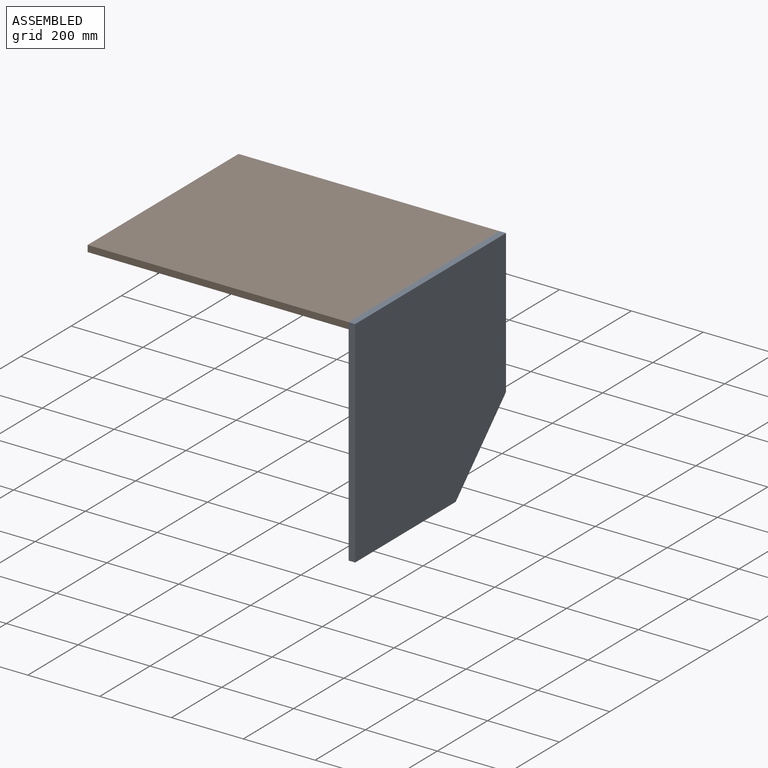
[diagram: assembled view]
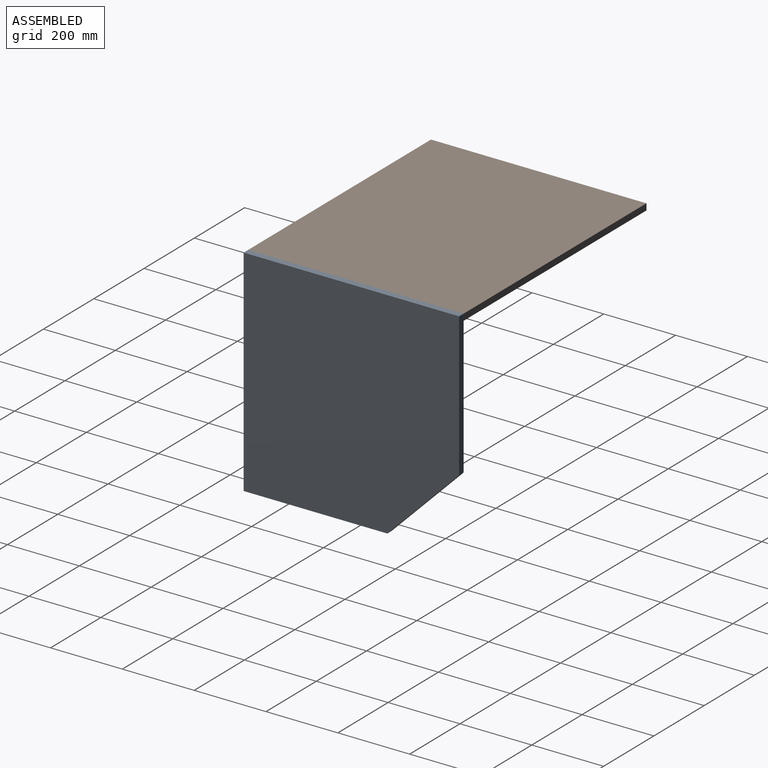
[diagram: assembled view, second angle]
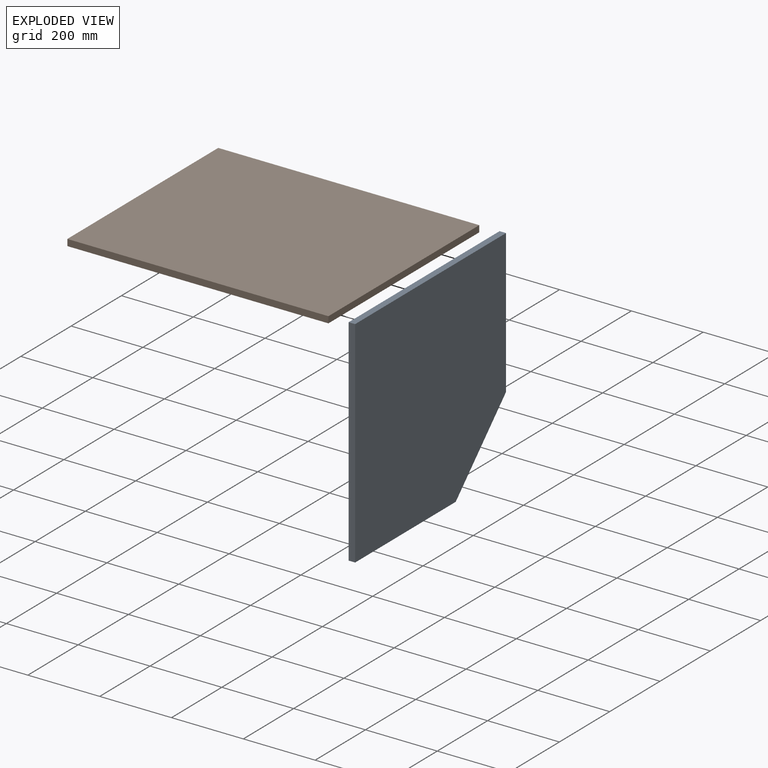
[diagram: exploded view]
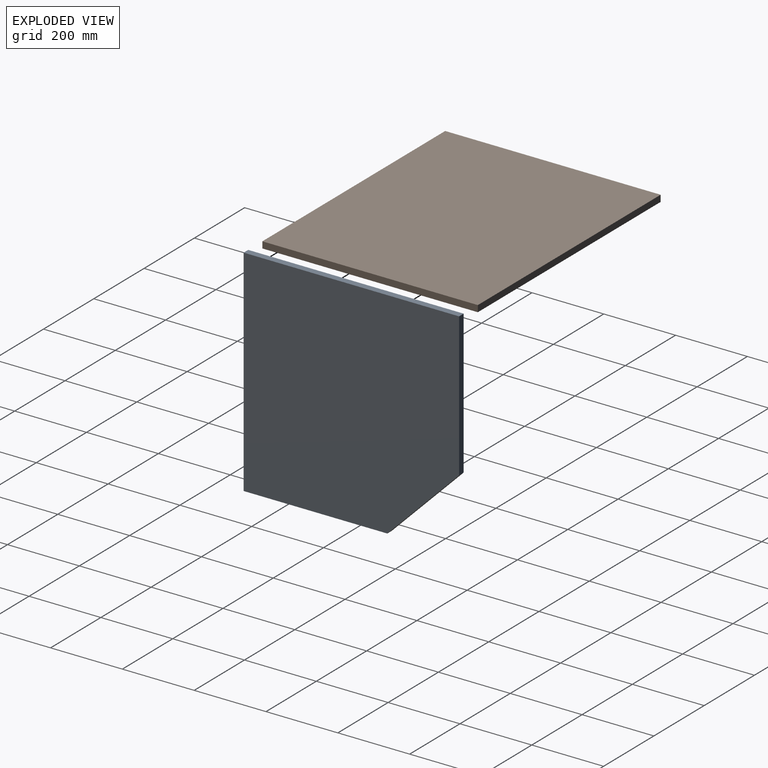
[diagram: exploded view, second angle]
ASSEMBLY  parts=2 mates=3
PART A: 7 faces, bbox 600x18x600 mm
  f0: plane 400x18mm, normal (0,0,-1), area 7200mm2, adj f1,f4,f5,f6
  f1: plane 600x18mm, normal (1,0,0), area 10800mm2, adj f0,f2,f5,f6
  f2: plane 600x18mm, normal (0,0,1), area 10800mm2, adj f1,f3,f5,f6
  f3: plane 400x18mm, normal (-1,0,0), area 7200mm2, adj f2,f4,f5,f6
  f4: plane 200x200mm, normal (-0.71,0,-0.71), area 5091.2mm2, adj f0,f3,f5,f6
  f5: plane 600x600mm, normal (0,-1,0), area 340000mm2, adj f0,f1,f2,f3,f4
  f6: plane 600x600mm, normal (0,1,0), area 340000mm2, adj f0,f1,f2,f3,f4
PART B: 6 faces, bbox 600x727x18 mm
  f0: plane 727x600mm, normal (0,0,1), area 436200mm2, adj f1,f3,f4,f5
  f1: plane 727x18mm, normal (-1,0,0), area 13086mm2, adj f0,f2,f4,f5
  f2: plane 727x600mm, normal (0,0,-1), area 436200mm2, adj f1,f3,f4,f5
  f3: plane 727x18mm, normal (1,0,0), area 13086mm2, adj f0,f2,f4,f5
  f4: plane 600x18mm, normal (0,-1,0), area 10800mm2, adj f0,f1,f2,f3
  f5: plane 600x18mm, normal (0,1,0), area 10800mm2, adj f0,f1,f2,f3
PLACE A rot(axis=(0.58,-0.58,0.58),120deg) t=(1265.82,-2603.72,2172.11)mm
PLACE B rot(axis=(0.71,0.71,0),180deg) t=(902.32,-2603.72,2463.11)mm
MATE planar B.f5 <-> A.f6  axis (1,0,0) through (1265.82,-2603.72,2463.11)mm
MATE planar B.f3 <-> A.f0  axis (0,1,0) through (902.32,-2303.72,2463.11)mm
MATE planar B.f2 <-> A.f1  axis (0,0,1) through (902.32,-2603.72,2472.11)mm
